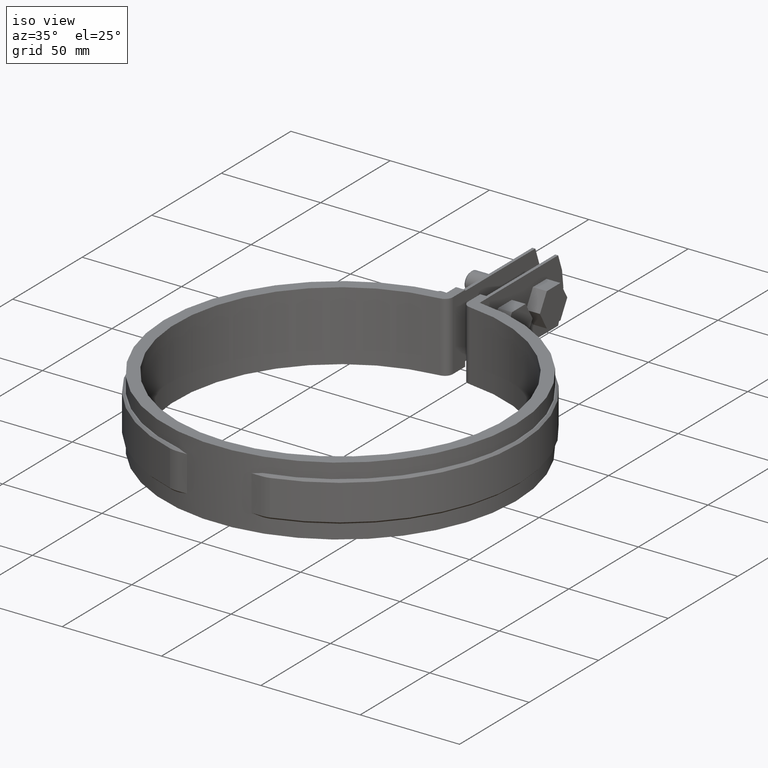
[diagram: clean part render]
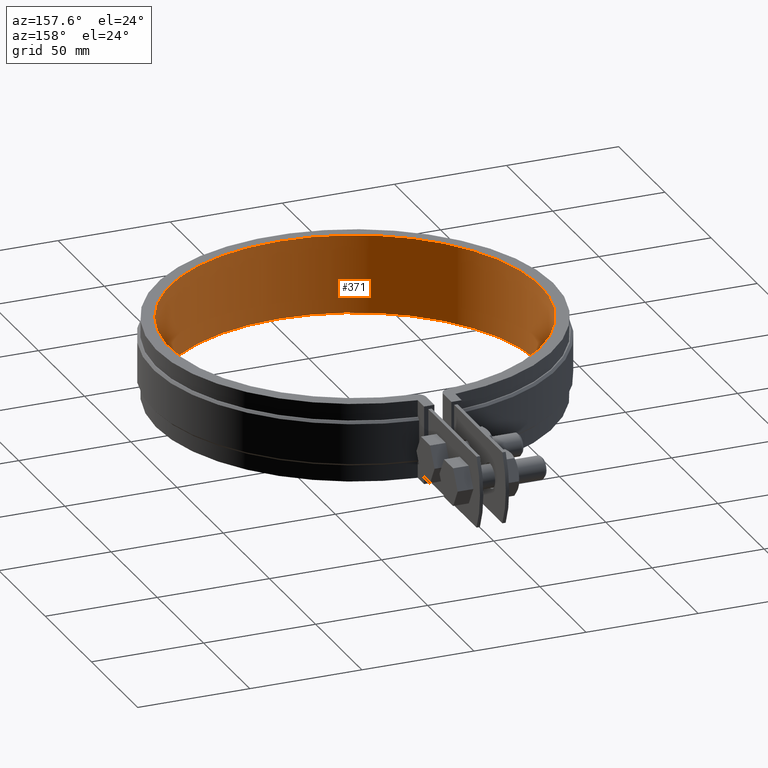
[diagram: tour spotlight — one face highlighted and labeled with its STEP entity id]
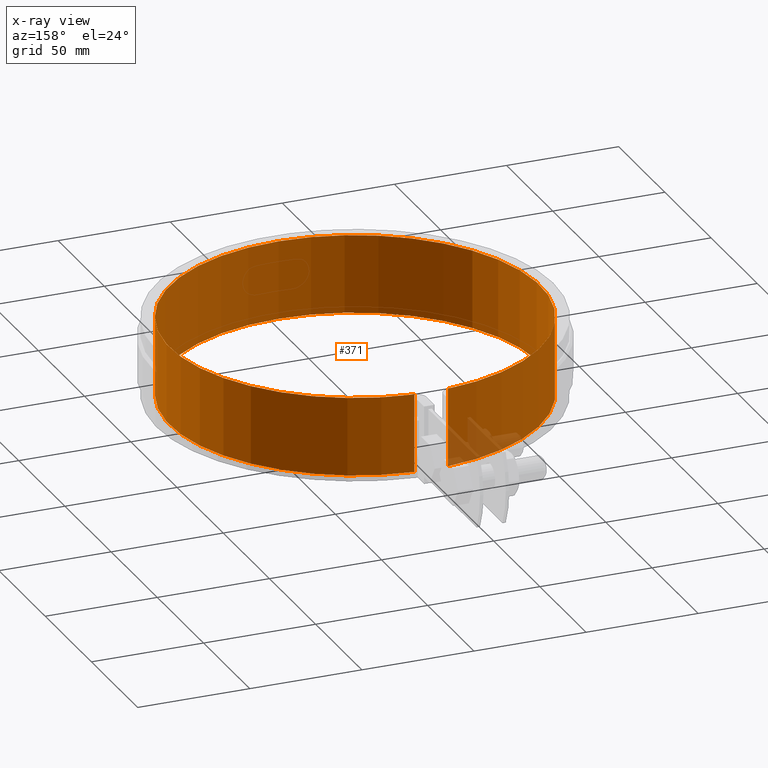
[diagram: x-ray of the same camera — body ghosted, this tour face saturated]
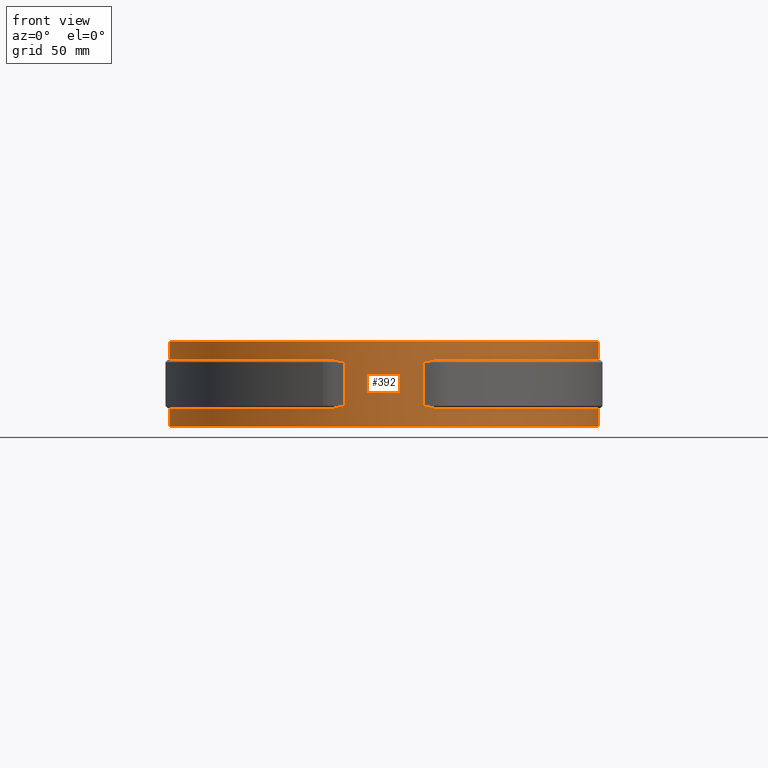
[diagram: tour spotlight — one face highlighted and labeled with its STEP entity id]
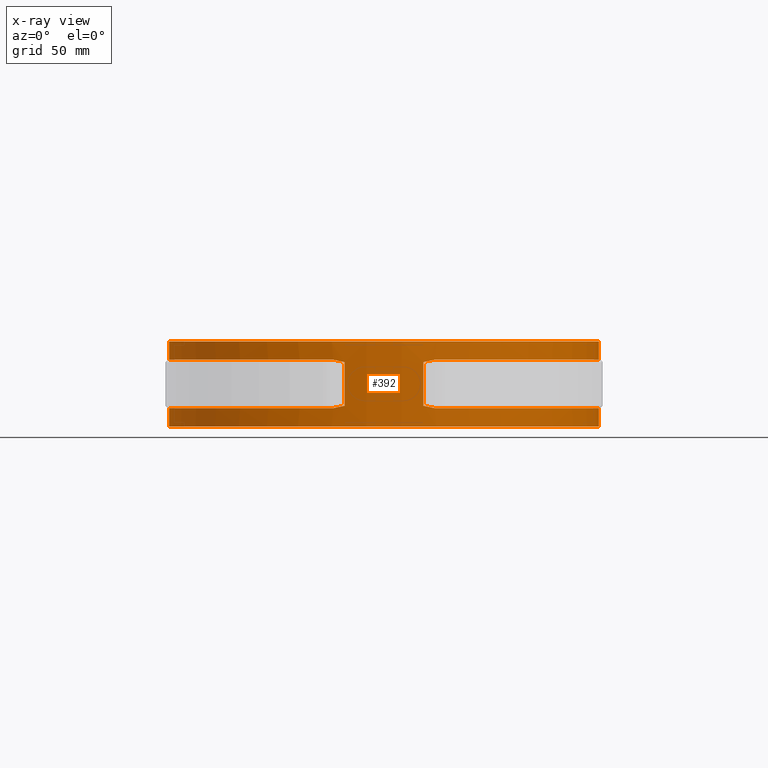
[diagram: x-ray of the same camera — body ghosted, this tour face saturated]
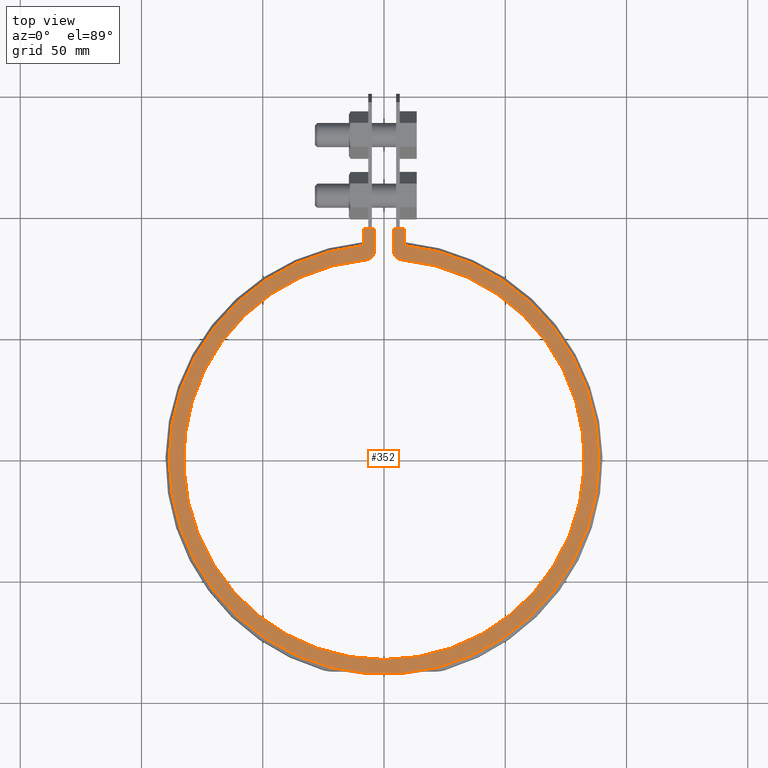
[diagram: tour spotlight — one face highlighted and labeled with its STEP entity id]
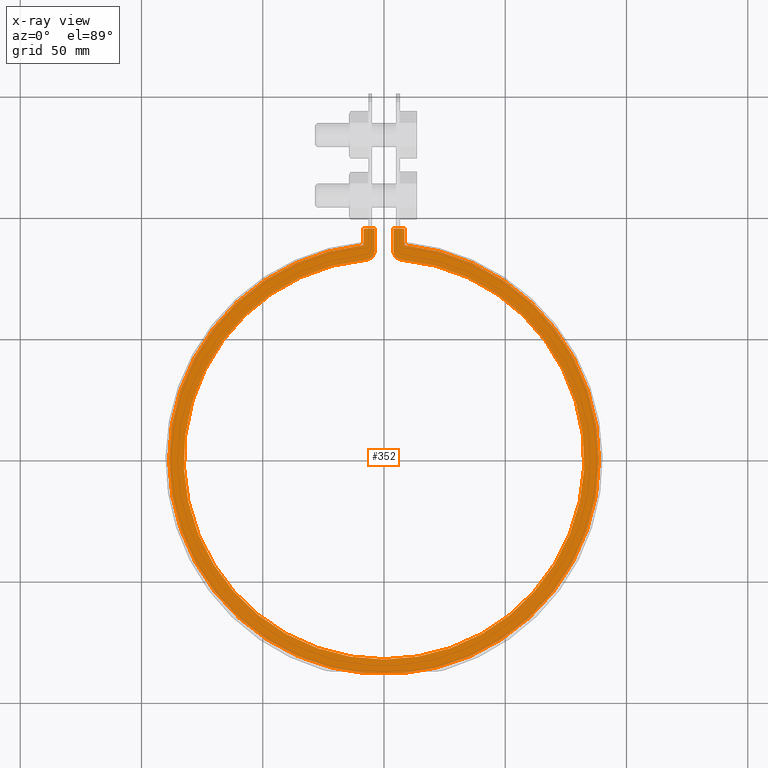
[diagram: x-ray of the same camera — body ghosted, this tour face saturated]
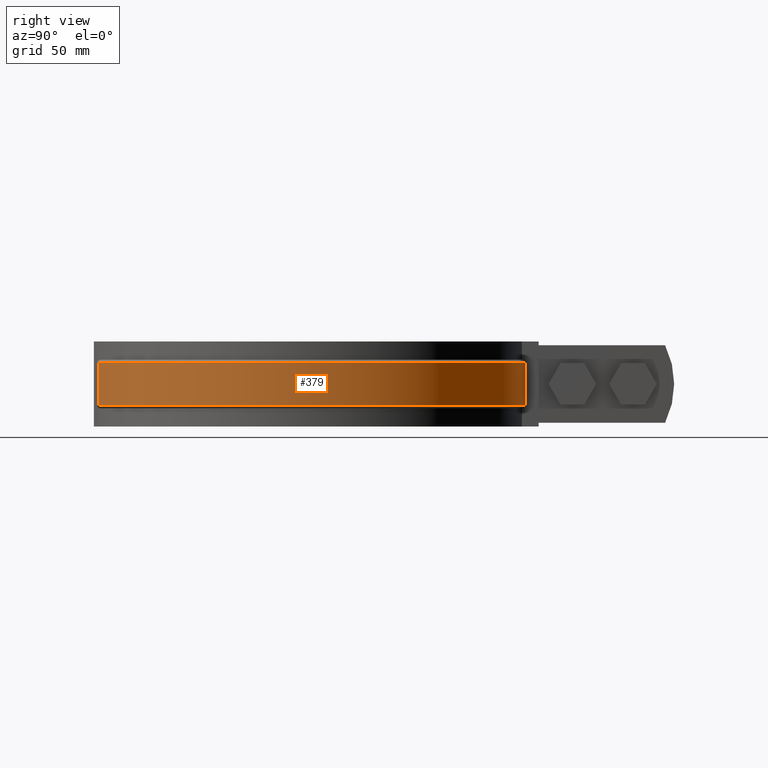
[diagram: tour spotlight — one face highlighted and labeled with its STEP entity id]
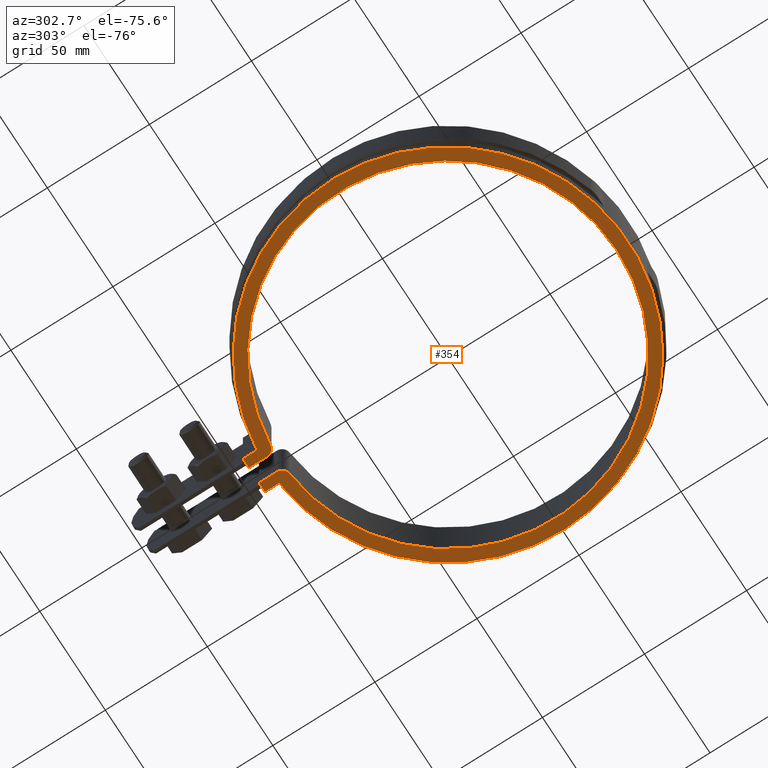
[diagram: tour spotlight — one face highlighted and labeled with its STEP entity id]
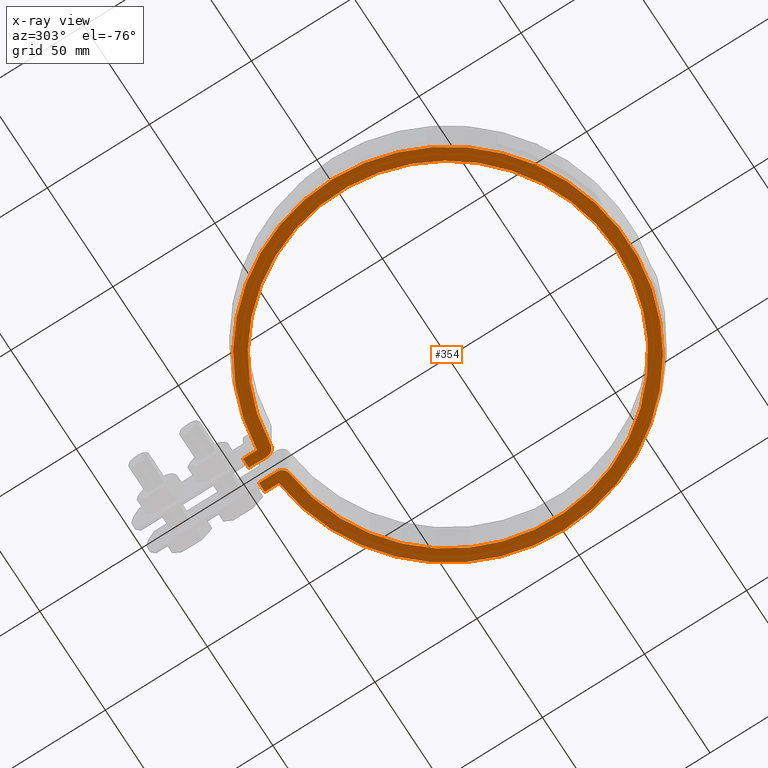
[diagram: x-ray of the same camera — body ghosted, this tour face saturated]
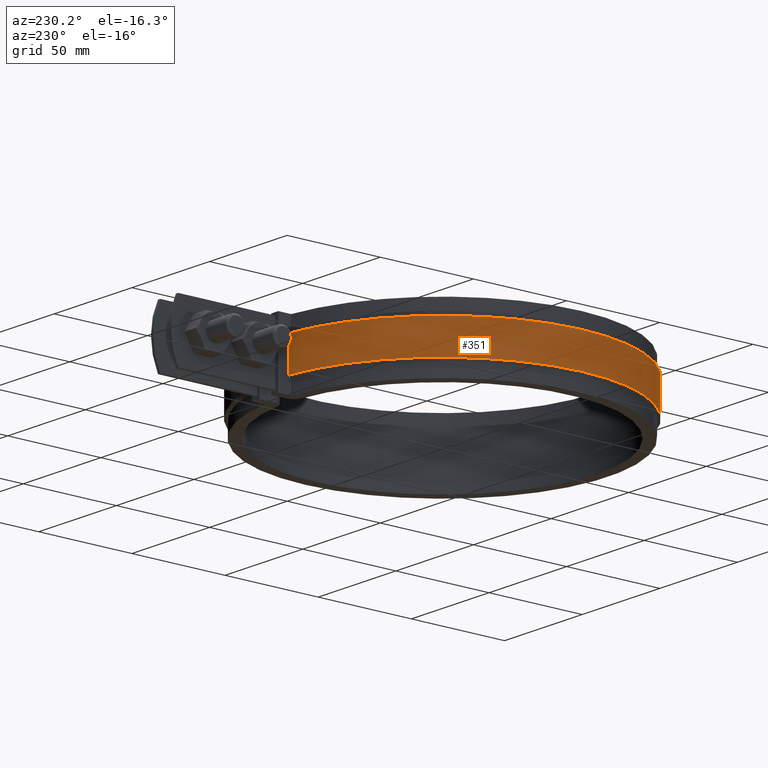
[diagram: tour spotlight — one face highlighted and labeled with its STEP entity id]
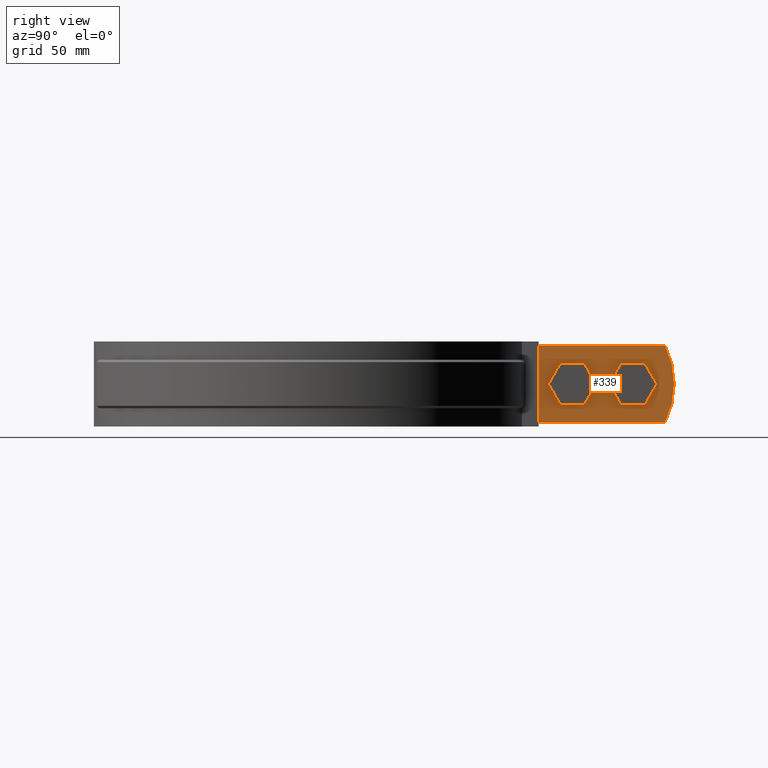
[diagram: tour spotlight — one face highlighted and labeled with its STEP entity id]
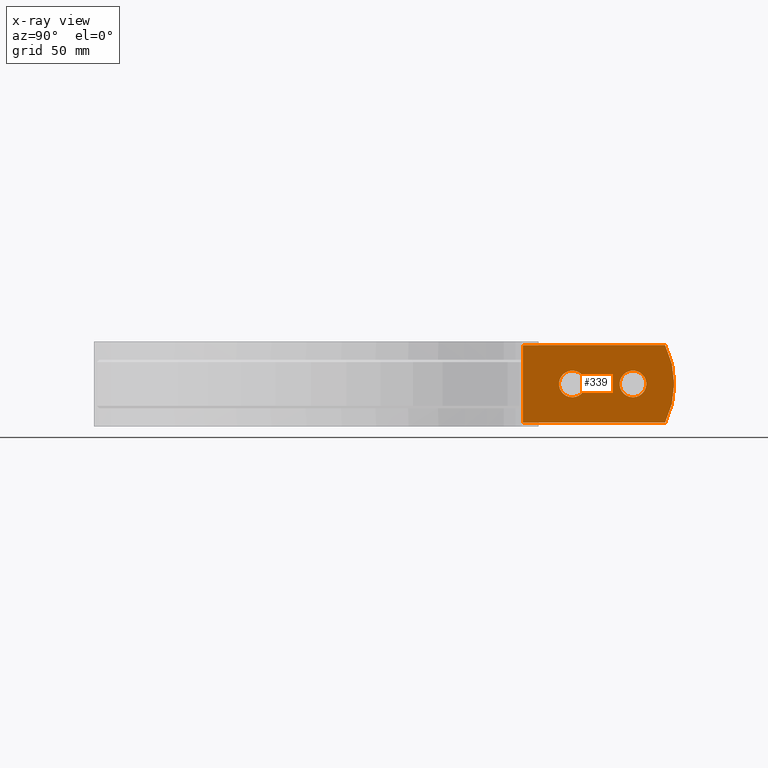
[diagram: x-ray of the same camera — body ghosted, this tour face saturated]
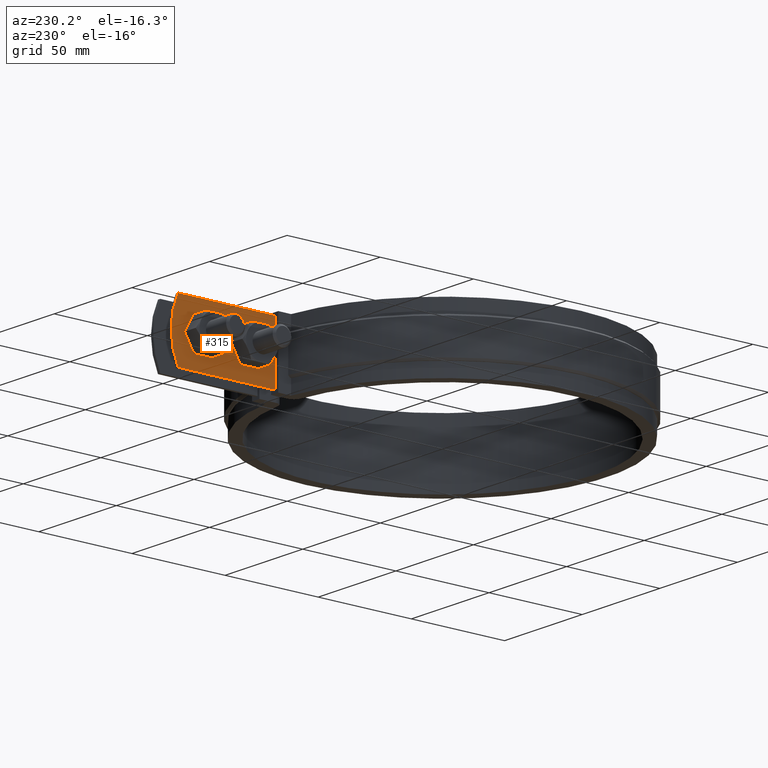
[diagram: tour spotlight — one face highlighted and labeled with its STEP entity id]
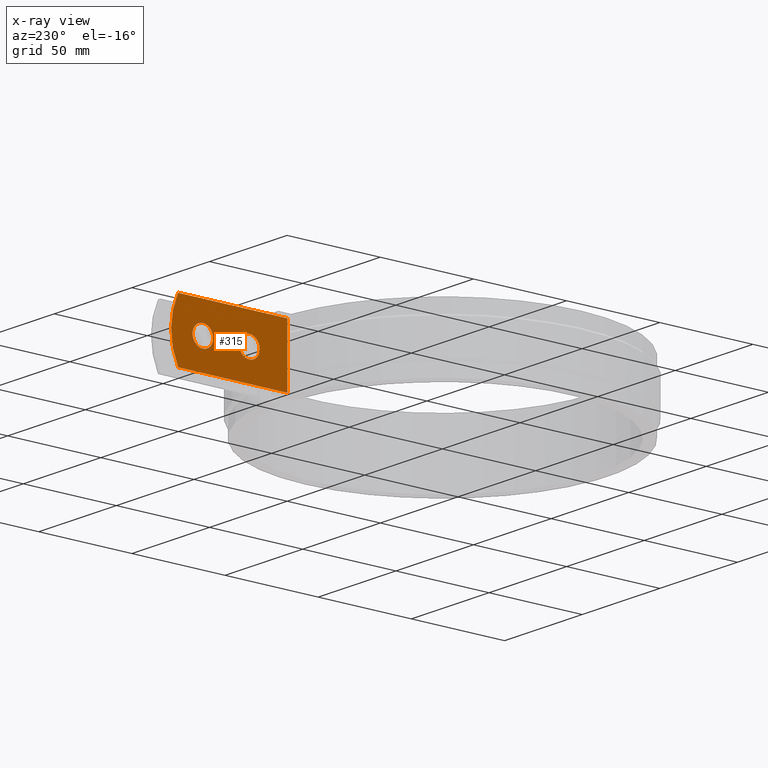
[diagram: x-ray of the same camera — body ghosted, this tour face saturated]
A machine part: a face-by-face anatomy tour. The part has 146 B-rep faces; the first image is the clean iso view, then the 8 largest visible faces are spotlighted one at a time (largest first), each with its STEP entity span.

Face 1 — auxiliary view, entity #371. An x-ray twin of the same camera follows (body ghosted, this face saturated) — the face is partly hidden behind the body. In plain terms, the highlighted cylindrical surface (partial cylindrical patch) has radius 82.6 mm, axis along (0, 0, 1).
Definition (entity closure, byte-faithful):
#371 = ADVANCED_FACE( '', ( #593 ), #594, .F. );
#593 = FACE_OUTER_BOUND( '', #1671, .T. );
#594 = CYLINDRICAL_SURFACE( '', #1672, 82.6000000000007 );
#1671 = EDGE_LOOP( '', ( #3520, #3521, #3522, #3523 ) );
#1672 = AXIS2_PLACEMENT_3D( '', #3524, #3525, #3526 );
#3520 = ORIENTED_EDGE( '', *, *, #4749, .F. );
#3521 = ORIENTED_EDGE( '', *, *, #4842, .F. );
#3522 = ORIENTED_EDGE( '', *, *, #4762, .T. );
#3523 = ORIENTED_EDGE( '', *, *, #4835, .T. );
#3524 = CARTESIAN_POINT( '', ( -6.24500451351651E-014, -6.24500451351651E-013, -33.5000000000000 ) );
#3525 = DIRECTION( '', ( 0.000000000000000, 2.54514470950076E-019, 1.00000000000000 ) );
#3526 = DIRECTION( '', ( 0.000000000000000, 1.00000000000000, -2.54514470950076E-019 ) );
#4749 = EDGE_CURVE( '', #5256, #5258, #5259, .F. );
#4762 = EDGE_CURVE( '', #5282, #5280, #5283, .F. );
#4835 = EDGE_CURVE( '', #5280, #5258, #5411, .T. );
#4842 = EDGE_CURVE( '', #5282, #5256, #5420, .T. );
#5256 = VERTEX_POINT( '', #7003 );
#5258 = VERTEX_POINT( '', #7005 );
#5259 = CIRCLE( '', #7006, 82.6000000000007 );
#5280 = VERTEX_POINT( '', #7034 );
#5282 = VERTEX_POINT( '', #7036 );
#5283 = CIRCLE( '', #7037, 82.6000000000007 );
#5411 = LINE( '', #7916, #7917 );
#5420 = LINE( '', #8059, #8060 );
#7003 = CARTESIAN_POINT( '', ( 7.43972286374134, 82.2642724620520, 1.50000000000000 ) );
#7005 = CARTESIAN_POINT( '', ( -7.43972286374127, 82.2642724620520, 1.50000000000000 ) );
#7006 = AXIS2_PLACEMENT_3D( '', #8876, #8877, #8878 );
#7034 = CARTESIAN_POINT( '', ( -7.43972286374127, 82.2642724620520, -33.5000000000000 ) );
#7036 = CARTESIAN_POINT( '', ( 7.43972286374134, 82.2642724620520, -33.5000000000000 ) );
#7037 = AXIS2_PLACEMENT_3D( '', #8901, #8902, #8903 );
#7916 = CARTESIAN_POINT( '', ( -7.43972286374120, 82.2642724620520, -33.5000000000000 ) );
#7917 = VECTOR( '', #8980, 1000.00000000000 );
#8059 = CARTESIAN_POINT( '', ( 7.43972286374133, 82.2642724620520, -33.5000000000000 ) );
#8060 = VECTOR( '', #8984, 1000.00000000000 );
#8876 = CARTESIAN_POINT( '', ( -6.24500451351651E-014, -6.24491543345168E-013, 1.50000000000000 ) );
#8877 = DIRECTION( '', ( 0.000000000000000, 2.54514470950076E-019, 1.00000000000000 ) );
#8878 = DIRECTION( '', ( 0.000000000000000, -1.00000000000000, 2.54514470950076E-019 ) );
#8901 = CARTESIAN_POINT( '', ( -6.24500451351651E-014, -6.24500451351651E-013, -33.5000000000000 ) );
#8902 = DIRECTION( '', ( 0.000000000000000, 2.54514470950076E-019, 1.00000000000000 ) );
#8903 = DIRECTION( '', ( 0.000000000000000, -1.00000000000000, 2.54514470950076E-019 ) );
#8980 = DIRECTION( '', ( 0.000000000000000, 2.54514470950076E-019, 1.00000000000000 ) );
#8984 = DIRECTION( '', ( 0.000000000000000, 2.54514470950076E-019, 1.00000000000000 ) );

Face 2 — front view, entity #392. An x-ray twin of the same camera follows (body ghosted, this face saturated) — the face is partly hidden behind the body. In plain terms, the highlighted cylindrical surface (partial cylindrical patch) has radius 88.6 mm, axis along (0, 0, 1).
Definition (entity closure, byte-faithful):
#392 = ADVANCED_FACE( '', ( #636 ), #637, .T. );
#636 = FACE_OUTER_BOUND( '', #1714, .T. );
#637 = CYLINDRICAL_SURFACE( '', #1715, 88.6000000000001 );
#1714 = EDGE_LOOP( '', ( #4072, #4073, #4074, #4075, #4076, #4077, #4078, #4079, #4080, #4081, #4082, #4083, #4084, #4085, #4086, #4087 ) );
#1715 = AXIS2_PLACEMENT_3D( '', #4088, #4089, #4090 );
#4072 = ORIENTED_EDGE( '', *, *, #4736, .F. );
#4073 = ORIENTED_EDGE( '', *, *, #4732, .T. );
#4074 = ORIENTED_EDGE( '', *, *, #4754, .F. );
#4075 = ORIENTED_EDGE( '', *, *, #4858, .F. );
#4076 = ORIENTED_EDGE( '', *, *, #4872, .T. );
#4077 = ORIENTED_EDGE( '', *, *, #4866, .T. );
#4078 = ORIENTED_EDGE( '', *, *, #4871, .F. );
#4079 = ORIENTED_EDGE( '', *, *, #4869, .T. );
#4080 = ORIENTED_EDGE( '', *, *, #4718, .F. );
#4081 = ORIENTED_EDGE( '', *, *, #4860, .F. );
#4082 = ORIENTED_EDGE( '', *, *, #4757, .T. );
#4083 = ORIENTED_EDGE( '', *, *, #4729, .T. );
#4084 = ORIENTED_EDGE( '', *, *, #4874, .T. );
#4085 = ORIENTED_EDGE( '', *, *, #4831, .T. );
#4086 = ORIENTED_EDGE( '', *, *, #4840, .T. );
#4087 = ORIENTED_EDGE( '', *, *, #4782, .T. );
#4088 = CARTESIAN_POINT( '', ( 6.93889390390723E-015, -9.71445146547012E-014, -33.5000000000000 ) );
#4089 = DIRECTION( '', ( 0.000000000000000, 2.54514470950076E-019, 1.00000000000000 ) );
#4090 = DIRECTION( '', ( 0.000000000000000, 1.00000000000000, -2.54514470950076E-019 ) );
#4718 = EDGE_CURVE( '', #5204, #5205, #5206, .F. );
#4729 = EDGE_CURVE( '', #5225, #5223, #5226, .F. );
#4732 = EDGE_CURVE( '', #5215, #5228, #5230, .F. );
#4736 = EDGE_CURVE( '', #5215, #5236, #5237, .F. );
#4754 = EDGE_CURVE( '', #5266, #5228, #5268, .T. );
#4757 = EDGE_CURVE( '', #5272, #5225, #5273, .T. );
#4782 = EDGE_CURVE( '', #5320, #5236, #5321, .F. );
#4831 = EDGE_CURVE( '', #5404, #5405, #5406, .T. );
#4840 = EDGE_CURVE( '', #5405, #5320, #5418, .F. );
#4858 = EDGE_CURVE( '', #5441, #5266, #5443, .F. );
#4860 = EDGE_CURVE( '', #5272, #5204, #5445, .F. );
#4866 = EDGE_CURVE( '', #5453, #5454, #5455, .F. );
#4869 = EDGE_CURVE( '', #5458, #5205, #5459, .T. );
#4871 = EDGE_CURVE( '', #5458, #5454, #5461, .F. );
#4872 = EDGE_CURVE( '', #5441, #5453, #5462, .F. );
#4874 = EDGE_CURVE( '', #5223, #5404, #5464, .F. );
#5204 = VERTEX_POINT( '', #6927 );
#5205 = VERTEX_POINT( '', #6928 );
#5206 = CIRCLE( '', #6929, 88.6000000000001 );
#5215 = VERTEX_POINT( '', #6941 );
#5223 = VERTEX_POINT( '', #6957 );
#5225 = VERTEX_POINT( '', #6960 );
#5226 = LINE( '', #6961, #6962 );
#5228 = VERTEX_POINT( '', #6965 );
#5230 = LINE( '', #6968, #6969 );
#5236 = VERTEX_POINT( '', #6976 );
#5237 = CIRCLE( '', #6977, 88.6000000000001 );
#5266 = VERTEX_POINT( '', #7015 );
#5268 = CIRCLE( '', #7018, 88.6000000000001 );
#5272 = VERTEX_POINT( '', #7023 );
#5273 = CIRCLE( '', #7024, 88.6000000000001 );
#5320 = VERTEX_POINT( '', #7443 );
#5321 = ELLIPSE( '', #7444, 125.299321626256, 88.6000000000001 );
#5404 = VERTEX_POINT( '', #7906 );
#5405 = VERTEX_POINT( '', #7907 );
#5406 = ELLIPSE( '', #7908, 125.299321626256, 88.6000000000001 );
#5418 = LINE( '', #8055, #8056 );
#5441 = VERTEX_POINT( '', #8231 );
#5443 = LINE( '', #8234, #8235 );
#5445 = LINE( '', #8238, #8239 );
#5453 = VERTEX_POINT( '', #8250 );
#5454 = VERTEX_POINT( '', #8251 );
#5455 = ELLIPSE( '', #8252, 125.299321626256, 88.6000000000001 );
#5458 = VERTEX_POINT( '', #8257 );
#5459 = ELLIPSE( '', #8258, 125.299321626256, 88.6000000000001 );
#5461 = LINE( '', #8261, #8262 );
#5462 = CIRCLE( '', #8263, 88.6000000000001 );
#5464 = CIRCLE( '', #8266, 88.6000000000001 );
#6927 = CARTESIAN_POINT( '', ( -8.40000000000000, 88.2009070248146, -26.0000000000000 ) );
#6928 = CARTESIAN_POINT( '', ( -20.8985645440071, -86.1000000000000, -26.0000000000000 ) );
#6929 = AXIS2_PLACEMENT_3D( '', #8825, #8826, #8827 );
#6941 = CARTESIAN_POINT( '', ( 8.39999999999999, 88.2009070248146, -6.00000000000000 ) );
#6957 = CARTESIAN_POINT( '', ( 8.39999999999999, 88.2009070248147, -26.0000000000000 ) );
#6960 = CARTESIAN_POINT( '', ( 8.39999999999999, 88.2009070248147, -33.5000000000000 ) );
#6961 = CARTESIAN_POINT( '', ( 8.39999999999999, 88.2009070248147, -33.5000000000000 ) );
#6962 = VECTOR( '', #8840, 1000.00000000000 );
#6965 = CARTESIAN_POINT( '', ( 8.39999999999999, 88.2009070248147, 1.50000000000000 ) );
#6968 = CARTESIAN_POINT( '', ( 8.39999999999999, 88.2009070248147, -33.5000000000000 ) );
#6969 = VECTOR( '', #8843, 1000.00000000000 );
#6976 = CARTESIAN_POINT( '', ( 20.8985645440072, -86.1000000000000, -6.00000000000000 ) );
#6977 = AXIS2_PLACEMENT_3D( '', #8851, #8852, #8853 );
#7015 = CARTESIAN_POINT( '', ( -8.40000000000000, 88.2009070248147, 1.50000000000000 ) );
#7018 = AXIS2_PLACEMENT_3D( '', #8885, #8886, #8887 );
#7023 = CARTESIAN_POINT( '', ( -8.40000000000000, 88.2009070248147, -33.5000000000000 ) );
#7024 = AXIS2_PLACEMENT_3D( '', #8892, #8893, #8894 );
#7443 = CARTESIAN_POINT( '', ( 16.2342231104551, -87.1000000000000, -7.00000000000000 ) );
#7444 = AXIS2_PLACEMENT_3D( '', #8929, #8930, #8931 );
#7906 = CARTESIAN_POINT( '', ( 20.8985645440072, -86.1000000000000, -26.0000000000000 ) );
#7907 = CARTESIAN_POINT( '', ( 16.2342231104551, -87.1000000000000, -25.0000000000000 ) );
#7908 = AXIS2_PLACEMENT_3D( '', #8974, #8975, #8976 );
#8055 = CARTESIAN_POINT( '', ( 16.2342231104551, -87.1000000000000, -33.5000000000000 ) );
#8056 = VECTOR( '', #8982, 1000.00000000000 );
#8231 = CARTESIAN_POINT( '', ( -8.40000000000000, 88.2009070248147, -6.00000000000000 ) );
#8234 = CARTESIAN_POINT( '', ( -8.40000000000000, 88.2009070248147, -33.5000000000000 ) );
#8235 = VECTOR( '', #9000, 1000.00000000000 );
#8238 = CARTESIAN_POINT( '', ( -8.40000000000000, 88.2009070248147, -33.5000000000000 ) );
#8239 = VECTOR( '', #9002, 1000.00000000000 );
#8250 = CARTESIAN_POINT( '', ( -20.8985645440072, -86.1000000000000, -6.00000000000000 ) );
#8251 = CARTESIAN_POINT( '', ( -16.2342231104551, -87.1000000000000, -7.00000000000000 ) );
#8252 = AXIS2_PLACEMENT_3D( '', #9012, #9013, #9014 );
#8257 = CARTESIAN_POINT( '', ( -16.2342231104551, -87.1000000000000, -25.0000000000000 ) );
#8258 = AXIS2_PLACEMENT_3D( '', #9017, #9018, #9019 );
#8261 = CARTESIAN_POINT( '', ( -16.2342231104551, -87.1000000000000, -33.5000000000000 ) );
#8262 = VECTOR( '', #9021, 1000.00000000000 );
#8263 = AXIS2_PLACEMENT_3D( '', #9022, #9023, #9024 );
#8266 = AXIS2_PLACEMENT_3D( '', #9026, #9027, #9028 );
#8825 = CARTESIAN_POINT( '', ( 6.93889390390723E-015, -9.71426057961691E-014, -26.0000000000000 ) );
#8826 = DIRECTION( '', ( 0.000000000000000, 0.000000000000000, -1.00000000000000 ) );
#8827 = DIRECTION( '', ( -1.00000000000000, 0.000000000000000, 0.000000000000000 ) );
#8840 = DIRECTION( '', ( 0.000000000000000, -2.54514470950076E-019, -1.00000000000000 ) );
#8843 = DIRECTION( '', ( 0.000000000000000, -2.54514470950076E-019, -1.00000000000000 ) );
#8851 = CARTESIAN_POINT( '', ( 6.93889390390723E-015, -9.71375155067501E-014, -6.00000000000000 ) );
#8852 = DIRECTION( '', ( 0.000000000000000, 0.000000000000000, 1.00000000000000 ) );
#8853 = DIRECTION( '', ( 1.00000000000000, 0.000000000000000, 0.000000000000000 ) );
#8885 = CARTESIAN_POINT( '', ( 6.93889390390723E-015, -9.71356066482180E-014, 1.50000000000000 ) );
#8886 = DIRECTION( '', ( 0.000000000000000, 2.54514470950076E-019, 1.00000000000000 ) );
#8887 = DIRECTION( '', ( 0.000000000000000, -1.00000000000000, 2.54514470950076E-019 ) );
#8892 = CARTESIAN_POINT( '', ( 6.93889390390723E-015, -9.71445146547012E-014, -33.5000000000000 ) );
#8893 = DIRECTION( '', ( 0.000000000000000, 2.54514470950076E-019, 1.00000000000000 ) );
#8894 = DIRECTION( '', ( 0.000000000000000, -1.00000000000000, 2.54514470950076E-019 ) );
#8929 = CARTESIAN_POINT( '', ( 6.93889390390723E-015, -9.71156018108013E-014, 80.0999999999998 ) );
#8930 = DIRECTION( '', ( 0.000000000000000, 0.707106781186547, -0.707106781186548 ) );
#8931 = DIRECTION( '', ( 0.000000000000000, -0.707106781186548, -0.707106781186547 ) );
#8974 = CARTESIAN_POINT( '', ( 6.93889390390723E-015, -9.71645194921179E-014, -112.100000000000 ) );
#8975 = DIRECTION( '', ( 0.000000000000000, -0.707106781186548, -0.707106781186548 ) );
#8976 = DIRECTION( '', ( 0.000000000000000, 0.707106781186547, -0.707106781186547 ) );
#8982 = DIRECTION( '', ( 0.000000000000000, -2.54514470950076E-019, -1.00000000000000 ) );
#9000 = DIRECTION( '', ( 0.000000000000000, -2.54514470950076E-019, -1.00000000000000 ) );
#9002 = DIRECTION( '', ( 0.000000000000000, -2.54514470950076E-019, -1.00000000000000 ) );
#9012 = CARTESIAN_POINT( '', ( 6.93889390390723E-015, -9.71156018108013E-014, 80.0999999999998 ) );
#9013 = DIRECTION( '', ( 0.000000000000000, 0.707106781186547, -0.707106781186548 ) );
#9014 = DIRECTION( '', ( 0.000000000000000, -0.707106781186548, -0.707106781186547 ) );
#9017 = CARTESIAN_POINT( '', ( 6.93889390390723E-015, -9.71645194921179E-014, -112.100000000000 ) );
#9018 = DIRECTION( '', ( 0.000000000000000, -0.707106781186548, -0.707106781186548 ) );
#9019 = DIRECTION( '', ( 0.000000000000000, 0.707106781186547, -0.707106781186547 ) );
#9021 = DIRECTION( '', ( 0.000000000000000, -2.54514470950076E-019, -1.00000000000000 ) );
#9022 = CARTESIAN_POINT( '', ( 6.93889390390723E-015, -9.71375155067501E-014, -6.00000000000000 ) );
#9023 = DIRECTION( '', ( 0.000000000000000, 0.000000000000000, -1.00000000000000 ) );
#9024 = DIRECTION( '', ( -1.00000000000000, 0.000000000000000, 0.000000000000000 ) );
#9026 = CARTESIAN_POINT( '', ( 6.93889390390723E-015, -9.71426057961691E-014, -26.0000000000000 ) );
#9027 = DIRECTION( '', ( 0.000000000000000, 0.000000000000000, 1.00000000000000 ) );
#9028 = DIRECTION( '', ( 1.00000000000000, 0.000000000000000, 0.000000000000000 ) );

Face 3 — top view, entity #352. An x-ray twin of the same camera follows (body ghosted, this face saturated) — the face is partly hidden behind the body. In plain terms, the highlighted planar face has unit normal (0, 0, 1).
Definition (entity closure, byte-faithful):
#352 = ADVANCED_FACE( '', ( #554 ), #555, .T. );
#554 = FACE_OUTER_BOUND( '', #1259, .T. );
#555 = PLANE( '', #1260 );
#1259 = EDGE_LOOP( '', ( #2958, #2959, #2960, #2961, #2962, #2963, #2964, #2965, #2966, #2967 ) );
#1260 = AXIS2_PLACEMENT_3D( '', #2968, #2969, #2970 );
#2958 = ORIENTED_EDGE( '', *, *, #4731, .T. );
#2959 = ORIENTED_EDGE( '', *, *, #4706, .T. );
#2960 = ORIENTED_EDGE( '', *, *, #4747, .T. );
#2961 = ORIENTED_EDGE( '', *, *, #4748, .T. );
#2962 = ORIENTED_EDGE( '', *, *, #4749, .T. );
#2963 = ORIENTED_EDGE( '', *, *, #4750, .T. );
#2964 = ORIENTED_EDGE( '', *, *, #4751, .T. );
#2965 = ORIENTED_EDGE( '', *, *, #4752, .T. );
#2966 = ORIENTED_EDGE( '', *, *, #4753, .T. );
#2967 = ORIENTED_EDGE( '', *, *, #4754, .T. );
#2968 = CARTESIAN_POINT( '', ( 7.80000000000001, 86.2480144698995, 1.50000000000000 ) );
#2969 = DIRECTION( '', ( 0.000000000000000, 2.54514470950076E-019, 1.00000000000000 ) );
#2970 = DIRECTION( '', ( 1.00000000000000, 0.000000000000000, 0.000000000000000 ) );
#4706 = EDGE_CURVE( '', #5180, #5181, #5182, .T. );
#4731 = EDGE_CURVE( '', #5228, #5180, #5229, .T. );
#4747 = EDGE_CURVE( '', #5181, #5254, #5255, .T. );
#4748 = EDGE_CURVE( '', #5254, #5256, #5257, .T. );
#4749 = EDGE_CURVE( '', #5256, #5258, #5259, .F. );
#4750 = EDGE_CURVE( '', #5258, #5260, #5261, .T. );
#4751 = EDGE_CURVE( '', #5260, #5262, #5263, .T. );
#4752 = EDGE_CURVE( '', #5262, #5264, #5265, .T. );
#4753 = EDGE_CURVE( '', #5264, #5266, #5267, .T. );
#4754 = EDGE_CURVE( '', #5266, #5228, #5268, .T. );
#5180 = VERTEX_POINT( '', #6891 );
#5181 = VERTEX_POINT( '', #6892 );
#5182 = LINE( '', #6893, #6894 );
#5228 = VERTEX_POINT( '', #6965 );
#5229 = LINE( '', #6966, #6967 );
#5254 = VERTEX_POINT( '', #7000 );
#5255 = LINE( '', #7001, #7002 );
#5256 = VERTEX_POINT( '', #7003 );
#5257 = CIRCLE( '', #7004, 3.99999999999999 );
#5258 = VERTEX_POINT( '', #7005 );
#5259 = CIRCLE( '', #7006, 82.6000000000007 );
#5260 = VERTEX_POINT( '', #7007 );
#5261 = CIRCLE( '', #7008, 4.00000000000000 );
#5262 = VERTEX_POINT( '', #7009 );
#5263 = LINE( '', #7010, #7011 );
#5264 = VERTEX_POINT( '', #7012 );
#5265 = LINE( '', #7013, #7014 );
#5266 = VERTEX_POINT( '', #7015 );
#5267 = LINE( '', #7016, #7017 );
#5268 = CIRCLE( '', #7018, 88.6000000000001 );
#6891 = CARTESIAN_POINT( '', ( 8.39999999999999, 95.1000000000000, 1.50000000000000 ) );
#6892 = CARTESIAN_POINT( '', ( 3.80000000000002, 95.1000000000000, 1.50000000000000 ) );
#6893 = CARTESIAN_POINT( '', ( 7.80000000000001, 95.1000000000000, 1.50000000000000 ) );
#6894 = VECTOR( '', #8810, 1000.00000000000 );
#6965 = CARTESIAN_POINT( '', ( 8.39999999999999, 88.2009070248147, 1.50000000000000 ) );
#6966 = CARTESIAN_POINT( '', ( 8.39999999999999, 86.2480144698995, 1.50000000000000 ) );
#6967 = VECTOR( '', #8842, 1000.00000000000 );
#7000 = CARTESIAN_POINT( '', ( 3.80000000000002, 86.2480144698995, 1.50000000000000 ) );
#7001 = CARTESIAN_POINT( '', ( 3.80000000000002, 86.2480144698995, 1.50000000000000 ) );
#7002 = VECTOR( '', #8872, 1000.00000000000 );
#7003 = CARTESIAN_POINT( '', ( 7.43972286374134, 82.2642724620520, 1.50000000000000 ) );
#7004 = AXIS2_PLACEMENT_3D( '', #8873, #8874, #8875 );
#7005 = CARTESIAN_POINT( '', ( -7.43972286374127, 82.2642724620520, 1.50000000000000 ) );
#7006 = AXIS2_PLACEMENT_3D( '', #8876, #8877, #8878 );
#7007 = CARTESIAN_POINT( '', ( -3.79999999999998, 86.2480144698995, 1.50000000000000 ) );
#7008 = AXIS2_PLACEMENT_3D( '', #8879, #8880, #8881 );
#7009 = CARTESIAN_POINT( '', ( -3.79999999999998, 95.1000000000000, 1.50000000000000 ) );
#7010 = CARTESIAN_POINT( '', ( -3.79999999999998, 86.2480144698995, 1.50000000000000 ) );
#7011 = VECTOR( '', #8882, 1000.00000000000 );
#7012 = CARTESIAN_POINT( '', ( -8.40000000000000, 95.1000000000000, 1.50000000000000 ) );
#7013 = CARTESIAN_POINT( '', ( 7.80000000000001, 95.1000000000000, 1.50000000000000 ) );
#7014 = VECTOR( '', #8883, 1000.00000000000 );
#7015 = CARTESIAN_POINT( '', ( -8.40000000000000, 88.2009070248147, 1.50000000000000 ) );
#7016 = CARTESIAN_POINT( '', ( -8.40000000000000, 86.2480144698995, 1.50000000000000 ) );
#7017 = VECTOR( '', #8884, 1000.00000000000 );
#7018 = AXIS2_PLACEMENT_3D( '', #8885, #8886, #8887 );
#8810 = DIRECTION( '', ( -1.00000000000000, 0.000000000000000, 0.000000000000000 ) );
#8842 = DIRECTION( '', ( 6.93889390390723E-017, 1.00000000000000, -2.54514470950076E-019 ) );
#8872 = DIRECTION( '', ( -6.10365667473321E-017, -1.00000000000000, 2.54514470950076E-019 ) );
#8873 = CARTESIAN_POINT( '', ( 7.80000000000001, 86.2480144698995, 1.50000000000000 ) );
#8874 = DIRECTION( '', ( 0.000000000000000, 2.54514470950076E-019, 1.00000000000000 ) );
#8875 = DIRECTION( '', ( 0.000000000000000, -1.00000000000000, 2.54514470950076E-019 ) );
#8876 = CARTESIAN_POINT( '', ( -6.24500451351651E-014, -6.24491543345168E-013, 1.50000000000000 ) );
#8877 = DIRECTION( '', ( 0.000000000000000, 2.54514470950076E-019, 1.00000000000000 ) );
#8878 = DIRECTION( '', ( 0.000000000000000, -1.00000000000000, 2.54514470950076E-019 ) );
#8879 = CARTESIAN_POINT( '', ( -7.79999999999998, 86.2480144698995, 1.50000000000000 ) );
#8880 = DIRECTION( '', ( 0.000000000000000, 2.54514470950076E-019, 1.00000000000000 ) );
#8881 = DIRECTION( '', ( 0.000000000000000, -1.00000000000000, 2.54514470950076E-019 ) );
#8882 = DIRECTION( '', ( 6.10365667473322E-017, 1.00000000000000, -2.54514470950076E-019 ) );
#8883 = DIRECTION( '', ( -1.00000000000000, 0.000000000000000, 0.000000000000000 ) );
#8884 = DIRECTION( '', ( -6.93889390390723E-017, -1.00000000000000, 2.54514470950076E-019 ) );
#8885 = CARTESIAN_POINT( '', ( 6.93889390390723E-015, -9.71356066482180E-014, 1.50000000000000 ) );
#8886 = DIRECTION( '', ( 0.000000000000000, 2.54514470950076E-019, 1.00000000000000 ) );
#8887 = DIRECTION( '', ( 0.000000000000000, -1.00000000000000, 2.54514470950076E-019 ) );

Face 4 — right view, entity #379. In plain terms, the highlighted cylindrical surface (partial cylindrical patch) has radius 90.1 mm, axis along (0, 0, 1).
Definition (entity closure, byte-faithful):
#379 = ADVANCED_FACE( '', ( #609 ), #610, .T. );
#609 = FACE_OUTER_BOUND( '', #1687, .T. );
#610 = CYLINDRICAL_SURFACE( '', #1688, 90.1000000000000 );
#1687 = EDGE_LOOP( '', ( #3964, #3965, #3966, #3967 ) );
#1688 = AXIS2_PLACEMENT_3D( '', #3968, #3969, #3970 );
#3964 = ORIENTED_EDGE( '', *, *, #4726, .T. );
#3965 = ORIENTED_EDGE( '', *, *, #4735, .T. );
#3966 = ORIENTED_EDGE( '', *, *, #4741, .F. );
#3967 = ORIENTED_EDGE( '', *, *, #4853, .T. );
#3968 = CARTESIAN_POINT( '', ( -3.46944695195361E-015, 1.38777878078145E-014, -26.0000000000000 ) );
#3969 = DIRECTION( '', ( 0.000000000000000, 0.000000000000000, 1.00000000000000 ) );
#3970 = DIRECTION( '', ( 0.279817321684446, -0.960053262316911, 0.000000000000000 ) );
#4726 = EDGE_CURVE( '', #5219, #5217, #5220, .F. );
#4735 = EDGE_CURVE( '', #5217, #5233, #5235, .T. );
#4741 = EDGE_CURVE( '', #5244, #5233, #5245, .T. );
#4853 = EDGE_CURVE( '', #5244, #5219, #5435, .T. );
#5217 = VERTEX_POINT( '', #6944 );
#5219 = VERTEX_POINT( '', #6949 );
#5220 = LINE( '', #6950, #6951 );
#5233 = VERTEX_POINT( '', #6972 );
#5235 = CIRCLE( '', #6975, 90.1000000000000 );
#5244 = VERTEX_POINT( '', #6986 );
#5245 = LINE( '', #6987, #6988 );
#5435 = CIRCLE( '', #8221, 90.1000000000000 );
#6944 = CARTESIAN_POINT( '', ( 8.39999999999999, 89.7075805046597, -7.00000000000000 ) );
#6949 = CARTESIAN_POINT( '', ( 8.39999999999999, 89.7075805046597, -25.0000000000000 ) );
#6950 = CARTESIAN_POINT( '', ( 8.39999999999999, 89.7075805046597, -26.0000000000000 ) );
#6951 = VECTOR( '', #8838, 1000.00000000000 );
#6972 = CARTESIAN_POINT( '', ( 25.2115406837686, -86.5007989347536, -7.00000000000005 ) );
#6975 = AXIS2_PLACEMENT_3D( '', #8848, #8849, #8850 );
#6986 = CARTESIAN_POINT( '', ( 25.2115406837686, -86.5007989347536, -25.0000000000000 ) );
#6987 = CARTESIAN_POINT( '', ( 25.2115406837686, -86.5007989347537, -26.0000000000000 ) );
#6988 = VECTOR( '', #8862, 1000.00000000000 );
#8221 = AXIS2_PLACEMENT_3D( '', #8992, #8993, #8994 );
#8838 = DIRECTION( '', ( 0.000000000000000, 0.000000000000000, -1.00000000000000 ) );
#8848 = CARTESIAN_POINT( '', ( -3.46944695195361E-015, 1.38777878078145E-014, -7.00000000000000 ) );
#8849 = DIRECTION( '', ( 0.000000000000000, 0.000000000000000, -1.00000000000000 ) );
#8850 = DIRECTION( '', ( -1.00000000000000, 0.000000000000000, 0.000000000000000 ) );
#8862 = DIRECTION( '', ( 0.000000000000000, 0.000000000000000, 1.00000000000000 ) );
#8992 = CARTESIAN_POINT( '', ( -3.46944695195361E-015, 1.38777878078145E-014, -25.0000000000000 ) );
#8993 = DIRECTION( '', ( 0.000000000000000, 0.000000000000000, 1.00000000000000 ) );
#8994 = DIRECTION( '', ( 1.00000000000000, 0.000000000000000, 0.000000000000000 ) );

Face 5 — auxiliary view, entity #354. An x-ray twin of the same camera follows (body ghosted, this face saturated) — the face is partly hidden behind the body. In plain terms, the highlighted planar face has unit normal (0, 0, 1).
Definition (entity closure, byte-faithful):
#354 = ADVANCED_FACE( '', ( #558 ), #559, .F. );
#558 = FACE_OUTER_BOUND( '', #1263, .T. );
#559 = PLANE( '', #1264 );
#1263 = EDGE_LOOP( '', ( #2978, #2979, #2980, #2981, #2982, #2983, #2984, #2985, #2986, #2987 ) );
#1264 = AXIS2_PLACEMENT_3D( '', #2988, #2989, #2990 );
#2978 = ORIENTED_EDGE( '', *, *, #4730, .F. );
#2979 = ORIENTED_EDGE( '', *, *, #4757, .F. );
#2980 = ORIENTED_EDGE( '', *, *, #4758, .F. );
#2981 = ORIENTED_EDGE( '', *, *, #4759, .F. );
#2982 = ORIENTED_EDGE( '', *, *, #4760, .F. );
#2983 = ORIENTED_EDGE( '', *, *, #4761, .F. );
#2984 = ORIENTED_EDGE( '', *, *, #4762, .F. );
#2985 = ORIENTED_EDGE( '', *, *, #4763, .F. );
#2986 = ORIENTED_EDGE( '', *, *, #4764, .F. );
#2987 = ORIENTED_EDGE( '', *, *, #4708, .F. );
#2988 = CARTESIAN_POINT( '', ( 7.80000000000001, 86.2480144698995, -33.5000000000000 ) );
#2989 = DIRECTION( '', ( 0.000000000000000, 2.54514470950076E-019, 1.00000000000000 ) );
#2990 = DIRECTION( '', ( 1.00000000000000, 0.000000000000000, 0.000000000000000 ) );
#4708 = EDGE_CURVE( '', #5183, #5185, #5186, .F. );
#4730 = EDGE_CURVE( '', #5225, #5183, #5227, .F. );
#4757 = EDGE_CURVE( '', #5272, #5225, #5273, .T. );
#4758 = EDGE_CURVE( '', #5274, #5272, #5275, .F. );
#4759 = EDGE_CURVE( '', #5276, #5274, #5277, .F. );
#4760 = EDGE_CURVE( '', #5278, #5276, #5279, .F. );
#4761 = EDGE_CURVE( '', #5280, #5278, #5281, .T. );
#4762 = EDGE_CURVE( '', #5282, #5280, #5283, .F. );
#4763 = EDGE_CURVE( '', #5284, #5282, #5285, .T. );
#4764 = EDGE_CURVE( '', #5185, #5284, #5286, .F. );
#5183 = VERTEX_POINT( '', #6895 );
#5185 = VERTEX_POINT( '', #6898 );
#5186 = LINE( '', #6899, #6900 );
#5225 = VERTEX_POINT( '', #6960 );
#5227 = LINE( '', #6963, #6964 );
#5272 = VERTEX_POINT( '', #7023 );
#5273 = CIRCLE( '', #7024, 88.6000000000001 );
#5274 = VERTEX_POINT( '', #7025 );
#5275 = LINE( '', #7026, #7027 );
#5276 = VERTEX_POINT( '', #7028 );
#5277 = LINE( '', #7029, #7030 );
#5278 = VERTEX_POINT( '', #7031 );
#5279 = LINE( '', #7032, #7033 );
#5280 = VERTEX_POINT( '', #7034 );
#5281 = CIRCLE( '', #7035, 4.00000000000000 );
#5282 = VERTEX_POINT( '', #7036 );
#5283 = CIRCLE( '', #7037, 82.6000000000007 );
#5284 = VERTEX_POINT( '', #7038 );
#5285 = CIRCLE( '', #7039, 3.99999999999999 );
#5286 = LINE( '', #7040, #7041 );
#6895 = CARTESIAN_POINT( '', ( 8.39999999999999, 95.1000000000000, -33.5000000000000 ) );
#6898 = CARTESIAN_POINT( '', ( 3.80000000000002, 95.1000000000000, -33.5000000000000 ) );
#6899 = CARTESIAN_POINT( '', ( 8.39999999999999, 95.1000000000000, -33.5000000000000 ) );
#6900 = VECTOR( '', #8812, 1000.00000000000 );
#6960 = CARTESIAN_POINT( '', ( 8.39999999999999, 88.2009070248147, -33.5000000000000 ) );
#6963 = CARTESIAN_POINT( '', ( 8.39999999999999, 88.2009070248147, -33.5000000000000 ) );
#6964 = VECTOR( '', #8841, 1000.00000000000 );
#7023 = CARTESIAN_POINT( '', ( -8.40000000000000, 88.2009070248147, -33.5000000000000 ) );
#7024 = AXIS2_PLACEMENT_3D( '', #8892, #8893, #8894 );
#7025 = CARTESIAN_POINT( '', ( -8.40000000000000, 95.1000000000000, -33.5000000000000 ) );
#7026 = CARTESIAN_POINT( '', ( -8.40000000000000, 95.1000000000000, -33.5000000000000 ) );
#7027 = VECTOR( '', #8895, 1000.00000000000 );
#7028 = CARTESIAN_POINT( '', ( -3.79999999999998, 95.1000000000000, -33.5000000000000 ) );
#7029 = CARTESIAN_POINT( '', ( -3.80000000000000, 95.1000000000000, -33.5000000000000 ) );
#7030 = VECTOR( '', #8896, 1000.00000000000 );
#7031 = CARTESIAN_POINT( '', ( -3.79999999999998, 86.2480144698995, -33.5000000000000 ) );
#7032 = CARTESIAN_POINT( '', ( -3.79999999999998, 86.2480144698995, -33.5000000000000 ) );
#7033 = VECTOR( '', #8897, 1000.00000000000 );
#7034 = CARTESIAN_POINT( '', ( -7.43972286374127, 82.2642724620520, -33.5000000000000 ) );
#7035 = AXIS2_PLACEMENT_3D( '', #8898, #8899, #8900 );
#7036 = CARTESIAN_POINT( '', ( 7.43972286374134, 82.2642724620520, -33.5000000000000 ) );
#7037 = AXIS2_PLACEMENT_3D( '', #8901, #8902, #8903 );
#7038 = CARTESIAN_POINT( '', ( 3.80000000000002, 86.2480144698995, -33.5000000000000 ) );
#7039 = AXIS2_PLACEMENT_3D( '', #8904, #8905, #8906 );
#7040 = CARTESIAN_POINT( '', ( 3.80000000000002, 95.1000000000000, -33.5000000000000 ) );
#7041 = VECTOR( '', #8907, 1000.00000000000 );
#8812 = DIRECTION( '', ( 1.00000000000000, 0.000000000000000, 0.000000000000000 ) );
#8841 = DIRECTION( '', ( -6.93889390390723E-017, -1.00000000000000, 2.54514470950076E-019 ) );
#8892 = CARTESIAN_POINT( '', ( 6.93889390390723E-015, -9.71445146547012E-014, -33.5000000000000 ) );
#8893 = DIRECTION( '', ( 0.000000000000000, 2.54514470950076E-019, 1.00000000000000 ) );
#8894 = DIRECTION( '', ( 0.000000000000000, -1.00000000000000, 2.54514470950076E-019 ) );
#8895 = DIRECTION( '', ( 6.93889390390723E-017, 1.00000000000000, -2.54514470950076E-019 ) );
#8896 = DIRECTION( '', ( 1.00000000000000, 0.000000000000000, 0.000000000000000 ) );
#8897 = DIRECTION( '', ( -6.10365667473322E-017, -1.00000000000000, 2.54514470950076E-019 ) );
#8898 = CARTESIAN_POINT( '', ( -7.79999999999998, 86.2480144698995, -33.5000000000000 ) );
#8899 = DIRECTION( '', ( 0.000000000000000, 2.54514470950076E-019, 1.00000000000000 ) );
#8900 = DIRECTION( '', ( 0.000000000000000, -1.00000000000000, 2.54514470950076E-019 ) );
#8901 = CARTESIAN_POINT( '', ( -6.24500451351651E-014, -6.24500451351651E-013, -33.5000000000000 ) );
#8902 = DIRECTION( '', ( 0.000000000000000, 2.54514470950076E-019, 1.00000000000000 ) );
#8903 = DIRECTION( '', ( 0.000000000000000, -1.00000000000000, 2.54514470950076E-019 ) );
#8904 = CARTESIAN_POINT( '', ( 7.80000000000001, 86.2480144698995, -33.5000000000000 ) );
#8905 = DIRECTION( '', ( 0.000000000000000, 2.54514470950076E-019, 1.00000000000000 ) );
#8906 = DIRECTION( '', ( 0.000000000000000, -1.00000000000000, 2.54514470950076E-019 ) );
#8907 = DIRECTION( '', ( 6.10365667473321E-017, 1.00000000000000, -2.54514470950076E-019 ) );

Face 6 — auxiliary view, entity #351. In plain terms, the highlighted cylindrical surface (partial cylindrical patch) has radius 90.1 mm, axis along (0, 0, 1).
Definition (entity closure, byte-faithful):
#351 = ADVANCED_FACE( '', ( #552 ), #553, .T. );
#552 = FACE_OUTER_BOUND( '', #1257, .T. );
#553 = CYLINDRICAL_SURFACE( '', #1258, 90.1000000000000 );
#1257 = EDGE_LOOP( '', ( #2951, #2952, #2953, #2954 ) );
#1258 = AXIS2_PLACEMENT_3D( '', #2955, #2956, #2957 );
#2951 = ORIENTED_EDGE( '', *, *, #4744, .F. );
#2952 = ORIENTED_EDGE( '', *, *, #4717, .T. );
#2953 = ORIENTED_EDGE( '', *, *, #4745, .T. );
#2954 = ORIENTED_EDGE( '', *, *, #4746, .T. );
#2955 = CARTESIAN_POINT( '', ( 3.46944695195361E-015, 2.77555756156289E-014, -26.0000000000000 ) );
#2956 = DIRECTION( '', ( 0.000000000000000, 0.000000000000000, 1.00000000000000 ) );
#2957 = DIRECTION( '', ( 0.279817321684446, 0.960053262316911, 0.000000000000000 ) );
#4717 = EDGE_CURVE( '', #5197, #5201, #5203, .T. );
#4744 = EDGE_CURVE( '', #5197, #5249, #5250, .F. );
#4745 = EDGE_CURVE( '', #5201, #5251, #5252, .T. );
#4746 = EDGE_CURVE( '', #5251, #5249, #5253, .T. );
#5197 = VERTEX_POINT( '', #6916 );
#5201 = VERTEX_POINT( '', #6923 );
#5203 = CIRCLE( '', #6926, 90.1000000000000 );
#5249 = VERTEX_POINT( '', #6993 );
#5250 = LINE( '', #6994, #6995 );
#5251 = VERTEX_POINT( '', #6996 );
#5252 = LINE( '', #6997, #6998 );
#5253 = CIRCLE( '', #6999, 90.1000000000000 );
#6916 = CARTESIAN_POINT( '', ( -8.40000000000000, 89.7075805046597, -25.0000000000000 ) );
#6923 = CARTESIAN_POINT( '', ( -25.2115406837686, -86.5007989347536, -25.0000000000000 ) );
#6926 = AXIS2_PLACEMENT_3D( '', #8822, #8823, #8824 );
#6993 = CARTESIAN_POINT( '', ( -8.40000000000000, 89.7075805046597, -6.99999999999998 ) );
#6994 = CARTESIAN_POINT( '', ( -8.40000000000000, 89.7075805046597, -26.0000000000000 ) );
#6995 = VECTOR( '', #8867, 1000.00000000000 );
#6996 = CARTESIAN_POINT( '', ( -25.2115406837686, -86.5007989347536, -6.99999999999999 ) );
#6997 = CARTESIAN_POINT( '', ( -25.2115406837686, -86.5007989347536, -26.0000000000000 ) );
#6998 = VECTOR( '', #8868, 1000.00000000000 );
#6999 = AXIS2_PLACEMENT_3D( '', #8869, #8870, #8871 );
#8822 = CARTESIAN_POINT( '', ( 3.46944695195361E-015, 2.77555756156289E-014, -25.0000000000000 ) );
#8823 = DIRECTION( '', ( 0.000000000000000, 0.000000000000000, 1.00000000000000 ) );
#8824 = DIRECTION( '', ( 1.00000000000000, 0.000000000000000, 0.000000000000000 ) );
#8867 = DIRECTION( '', ( 0.000000000000000, 0.000000000000000, -1.00000000000000 ) );
#8868 = DIRECTION( '', ( 0.000000000000000, 0.000000000000000, 1.00000000000000 ) );
#8869 = CARTESIAN_POINT( '', ( 3.46944695195361E-015, 2.77555756156289E-014, -6.99999999999999 ) );
#8870 = DIRECTION( '', ( 0.000000000000000, 0.000000000000000, -1.00000000000000 ) );
#8871 = DIRECTION( '', ( -1.00000000000000, 0.000000000000000, 0.000000000000000 ) );

Face 7 — right view, entity #339. An x-ray twin of the same camera follows (body ghosted, this face saturated) — the face is partly hidden behind the body. In plain terms, the highlighted planar face has unit normal (1, 0, 0).
Definition (entity closure, byte-faithful):
#339 = ADVANCED_FACE( '', ( #522, #523, #524 ), #525, .T. );
#522 = FACE_OUTER_BOUND( '', #1227, .T. );
#523 = FACE_BOUND( '', #1228, .T. );
#524 = FACE_BOUND( '', #1229, .T. );
#525 = PLANE( '', #1230 );
#1227 = EDGE_LOOP( '', ( #2853, #2854, #2855, #2856 ) );
#1228 = EDGE_LOOP( '', ( #2857 ) );
#1229 = EDGE_LOOP( '', ( #2858 ) );
#1230 = AXIS2_PLACEMENT_3D( '', #2859, #2860, #2861 );
#2853 = ORIENTED_EDGE( '', *, *, #4679, .T. );
#2854 = ORIENTED_EDGE( '', *, *, #4663, .T. );
#2855 = ORIENTED_EDGE( '', *, *, #4703, .F. );
#2856 = ORIENTED_EDGE( '', *, *, #4687, .T. );
#2857 = ORIENTED_EDGE( '', *, *, #4705, .T. );
#2858 = ORIENTED_EDGE( '', *, *, #4685, .T. );
#2859 = CARTESIAN_POINT( '', ( 6.50000000000000, 151.002986998692, 0.000000000000000 ) );
#2860 = DIRECTION( '', ( 1.00000000000000, 2.41479936751300E-049, 3.87781752444833E-033 ) );
#2861 = DIRECTION( '', ( -3.79822709830392E-065, 1.00000000000000, -6.22721247786546E-017 ) );
#4663 = EDGE_CURVE( '', #5112, #5110, #5113, .T. );
#4679 = EDGE_CURVE( '', #5138, #5112, #5139, .F. );
#4685 = EDGE_CURVE( '', #5149, #5149, #5150, .F. );
#4687 = EDGE_CURVE( '', #5153, #5138, #5154, .T. );
#4703 = EDGE_CURVE( '', #5153, #5110, #5175, .F. );
#4705 = EDGE_CURVE( '', #5178, #5178, #5179, .F. );
#5110 = VERTEX_POINT( '', #6511 );
#5112 = VERTEX_POINT( '', #6513 );
#5113 = LINE( '', #6514, #6515 );
#5138 = VERTEX_POINT( '', #6758 );
#5139 = LINE( '', #6759, #6760 );
#5149 = VERTEX_POINT( '', #6772 );
#5150 = CIRCLE( '', #6773, 5.50000000000000 );
#5153 = VERTEX_POINT( '', #6776 );
#5154 = CIRCLE( '', #6777, 36.0000000000000 );
#5175 = LINE( '', #6885, #6886 );
#5178 = VERTEX_POINT( '', #6889 );
#5179 = CIRCLE( '', #6890, 5.50000000000000 );
#6511 = CARTESIAN_POINT( '', ( 6.50000000000000, 88.6442891561549, -32.0000000000000 ) );
#6513 = CARTESIAN_POINT( '', ( 6.50000000000000, 88.6442891561549, 0.000000000000000 ) );
#6514 = CARTESIAN_POINT( '', ( 6.50000000000000, 88.6442891561549, -32.0000000000000 ) );
#6515 = VECTOR( '', #8736, 1000.00000000000 );
#6758 = CARTESIAN_POINT( '', ( 6.50000000000000, 147.252017991886, 6.25662151550199E-031 ) );
#6759 = CARTESIAN_POINT( '', ( 6.50000000000000, 151.002986998692, 0.000000000000000 ) );
#6760 = VECTOR( '', #8757, 1000.00000000000 );
#6772 = CARTESIAN_POINT( '', ( 6.50000000000001, 109.002986998692, -21.5000000000000 ) );
#6773 = AXIS2_PLACEMENT_3D( '', #8769, #8770, #8771 );
#6776 = CARTESIAN_POINT( '', ( 6.50000000000000, 147.252017991886, -32.0000000000000 ) );
#6777 = AXIS2_PLACEMENT_3D( '', #8775, #8776, #8777 );
#6885 = CARTESIAN_POINT( '', ( 6.50000000000000, 151.002986998692, -32.0000000000000 ) );
#6886 = VECTOR( '', #8803, 1000.00000000000 );
#6889 = CARTESIAN_POINT( '', ( 6.50000000000001, 134.002986998692, -21.5000000000000 ) );
#6890 = AXIS2_PLACEMENT_3D( '', #8807, #8808, #8809 );
#8736 = DIRECTION( '', ( 0.000000000000000, 0.000000000000000, -1.00000000000000 ) );
#8757 = DIRECTION( '', ( -2.41479936751300E-049, 1.00000000000000, 0.000000000000000 ) );
#8769 = CARTESIAN_POINT( '', ( 6.50000000000001, 109.002986998692, -16.0000000000000 ) );
#8770 = DIRECTION( '', ( 1.00000000000000, 2.41479936751300E-049, 3.87781752444833E-033 ) );
#8771 = DIRECTION( '', ( 3.87781752444833E-033, 0.000000000000000, -1.00000000000000 ) );
#8775 = CARTESIAN_POINT( '', ( 6.50000000000001, 115.002986998692, -16.0000000000000 ) );
#8776 = DIRECTION( '', ( 1.00000000000000, 2.41479936751300E-049, 3.87781752444833E-033 ) );
#8777 = DIRECTION( '', ( 3.87781752444833E-033, 0.000000000000000, -1.00000000000000 ) );
#8803 = DIRECTION( '', ( -2.41479936751300E-049, 1.00000000000000, 0.000000000000000 ) );
#8807 = CARTESIAN_POINT( '', ( 6.50000000000001, 134.002986998692, -16.0000000000000 ) );
#8808 = DIRECTION( '', ( 1.00000000000000, 2.41479936751300E-049, 3.87781752444833E-033 ) );
#8809 = DIRECTION( '', ( 3.87781752444833E-033, 0.000000000000000, -1.00000000000000 ) );

Face 8 — auxiliary view, entity #315. An x-ray twin of the same camera follows (body ghosted, this face saturated) — the face is partly hidden behind the body. In plain terms, the highlighted planar face has unit normal (1, -0, 0).
Definition (entity closure, byte-faithful):
#315 = ADVANCED_FACE( '', ( #466, #467, #468 ), #469, .F. );
#466 = FACE_OUTER_BOUND( '', #798, .T. );
#467 = FACE_BOUND( '', #799, .T. );
#468 = FACE_BOUND( '', #800, .T. );
#469 = PLANE( '', #801 );
#798 = EDGE_LOOP( '', ( #1876, #1877, #1878, #1879 ) );
#799 = EDGE_LOOP( '', ( #1880 ) );
#800 = EDGE_LOOP( '', ( #1881 ) );
#801 = AXIS2_PLACEMENT_3D( '', #1882, #1883, #1884 );
#1876 = ORIENTED_EDGE( '', *, *, #4616, .T. );
#1877 = ORIENTED_EDGE( '', *, *, #4617, .T. );
#1878 = ORIENTED_EDGE( '', *, *, #4618, .F. );
#1879 = ORIENTED_EDGE( '', *, *, #4619, .F. );
#1880 = ORIENTED_EDGE( '', *, *, #4620, .F. );
#1881 = ORIENTED_EDGE( '', *, *, #4621, .F. );
#1882 = CARTESIAN_POINT( '', ( -6.49999999999999, 151.002986998692, 0.000000000000000 ) );
#1883 = DIRECTION( '', ( 1.00000000000000, -6.22721247786546E-017, 0.000000000000000 ) );
#1884 = DIRECTION( '', ( 0.000000000000000, 0.000000000000000, 1.00000000000000 ) );
#4616 = EDGE_CURVE( '', #5022, #5023, #5024, .T. );
#4617 = EDGE_CURVE( '', #5023, #5025, #5026, .T. );
#4618 = EDGE_CURVE( '', #5027, #5025, #5028, .T. );
#4619 = EDGE_CURVE( '', #5022, #5027, #5029, .T. );
#4620 = EDGE_CURVE( '', #5030, #5030, #5031, .F. );
#4621 = EDGE_CURVE( '', #5032, #5032, #5033, .F. );
#5022 = VERTEX_POINT( '', #5710 );
#5023 = VERTEX_POINT( '', #5711 );
#5024 = LINE( '', #5712, #5713 );
#5025 = VERTEX_POINT( '', #5714 );
#5026 = LINE( '', #5715, #5716 );
#5027 = VERTEX_POINT( '', #5717 );
#5028 = LINE( '', #5718, #5719 );
#5029 = CIRCLE( '', #5720, 36.0000000000000 );
#5030 = VERTEX_POINT( '', #5721 );
#5031 = CIRCLE( '', #5722, 5.50000000000000 );
#5032 = VERTEX_POINT( '', #5723 );
#5033 = CIRCLE( '', #5724, 5.50000000000000 );
#5710 = CARTESIAN_POINT( '', ( -6.49999999999998, 147.252017991886, -32.0000000000000 ) );
#5711 = CARTESIAN_POINT( '', ( -6.49999999999999, 88.6442891561549, -32.0000000000000 ) );
#5712 = CARTESIAN_POINT( '', ( -6.49999999999999, 151.002986998692, -32.0000000000000 ) );
#5713 = VECTOR( '', #8704, 1000.00000000000 );
#5714 = CARTESIAN_POINT( '', ( -6.49999999999999, 88.6442891561549, 0.000000000000000 ) );
#5715 = CARTESIAN_POINT( '', ( -6.49999999999999, 88.6442891561549, 0.000000000000000 ) );
#5716 = VECTOR( '', #8705, 1000.00000000000 );
#5717 = CARTESIAN_POINT( '', ( -6.49999999999998, 147.252017991886, -9.90674915894423E-031 ) );
#5718 = CARTESIAN_POINT( '', ( -6.50000000000000, 4.04768811061255E-016, 0.000000000000000 ) );
#5719 = VECTOR( '', #8706, 1000.00000000000 );
#5720 = AXIS2_PLACEMENT_3D( '', #8707, #8708, #8709 );
#5721 = CARTESIAN_POINT( '', ( -6.49999999999998, 139.502986998692, -16.0000000000000 ) );
#5722 = AXIS2_PLACEMENT_3D( '', #8710, #8711, #8712 );
#5723 = CARTESIAN_POINT( '', ( -6.49999999999998, 114.502986998692, -16.0000000000000 ) );
#5724 = AXIS2_PLACEMENT_3D( '', #8713, #8714, #8715 );
#8704 = DIRECTION( '', ( -6.22721247786546E-017, -1.00000000000000, 0.000000000000000 ) );
#8705 = DIRECTION( '', ( 0.000000000000000, 0.000000000000000, 1.00000000000000 ) );
#8706 = DIRECTION( '', ( -6.22721247786546E-017, -1.00000000000000, 0.000000000000000 ) );
#8707 = CARTESIAN_POINT( '', ( -6.49999999999998, 115.002986998692, -16.0000000000000 ) );
#8708 = DIRECTION( '', ( 1.00000000000000, -6.22721247786546E-017, 0.000000000000000 ) );
#8709 = DIRECTION( '', ( 6.22721247786546E-017, 1.00000000000000, 0.000000000000000 ) );
#8710 = CARTESIAN_POINT( '', ( -6.49999999999998, 134.002986998692, -16.0000000000000 ) );
#8711 = DIRECTION( '', ( 1.00000000000000, -6.22721247786546E-017, 0.000000000000000 ) );
#8712 = DIRECTION( '', ( 6.22721247786546E-017, 1.00000000000000, 0.000000000000000 ) );
#8713 = CARTESIAN_POINT( '', ( -6.49999999999998, 109.002986998692, -16.0000000000000 ) );
#8714 = DIRECTION( '', ( 1.00000000000000, -6.22721247786546E-017, 0.000000000000000 ) );
#8715 = DIRECTION( '', ( 6.22721247786546E-017, 1.00000000000000, 0.000000000000000 ) );